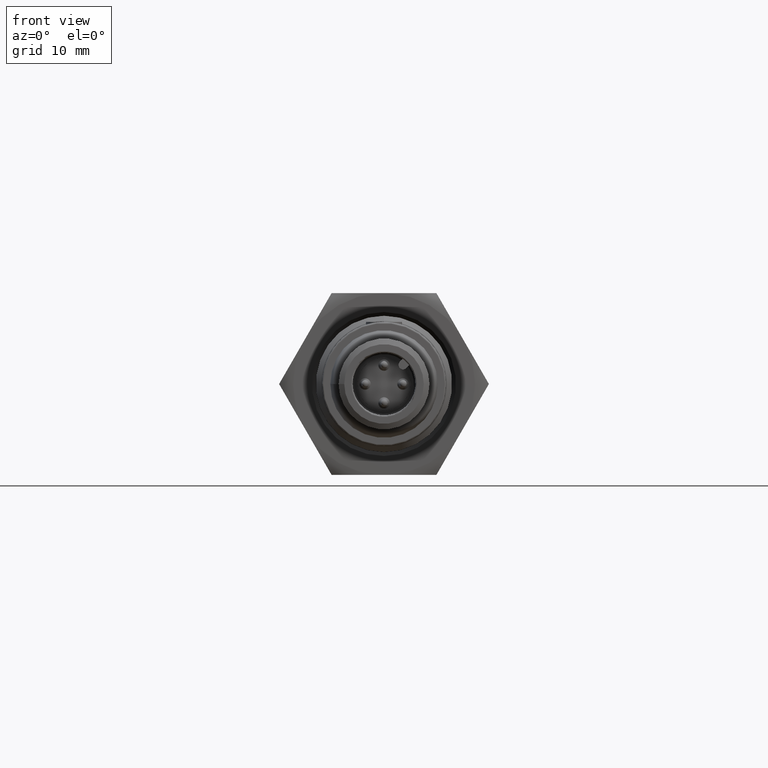
[diagram: clean part render]
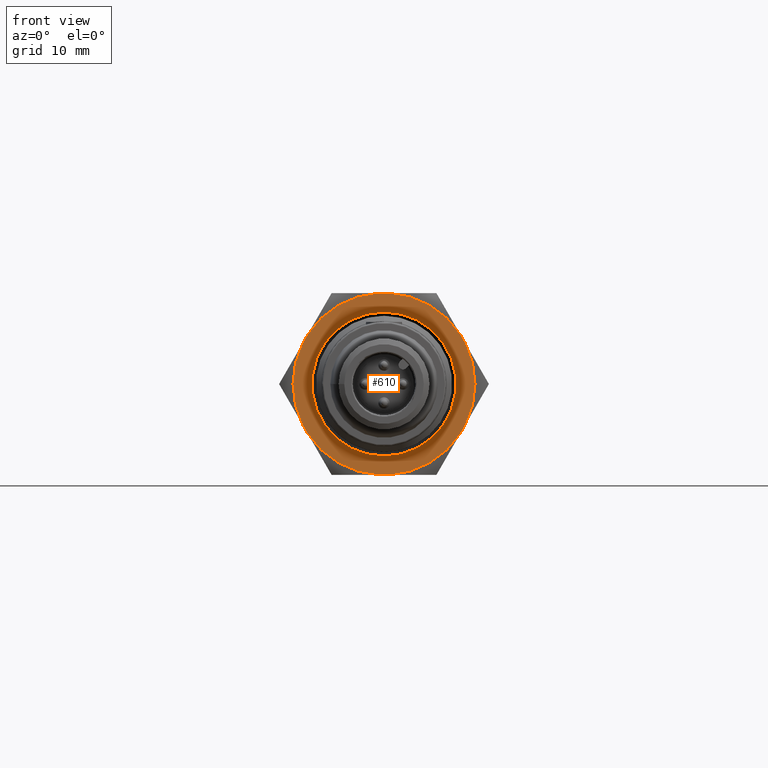
[diagram: same view with one face highlighted and labeled with its STEP entity id]
A machine part, front view. The second image highlights one B-rep face of the part: STEP entity #610.
In plain terms, the highlighted planar face has unit normal (-0, 1, 0).
Its self-contained STEP definition (entity closure, byte-faithful):
#25 = AXIS2_PLACEMENT_3D ( 'NONE', #3378, #5379, #1660 ) ;
#53 = PLANE ( 'NONE',  #2915 ) ;
#59 = ORIENTED_EDGE ( 'NONE', *, *, #1995, .F. ) ;
#154 = EDGE_CURVE ( 'NONE', #4142, #575, #4144, .T. ) ;
#176 = CARTESIAN_POINT ( 'NONE',  ( 0.2727639067037618270, 0.2006698835372759671, 0.4724409448818898127 ) ) ;
#215 = ORIENTED_EDGE ( 'NONE', *, *, #1578, .F. ) ;
#375 = DIRECTION ( 'NONE',  ( 0.000000000000000000, 0.000000000000000000, 1.000000000000000000 ) ) ;
#476 = CIRCLE ( 'NONE', #1098, 0.4731383344701551308 ) ;
#492 = EDGE_LOOP ( 'NONE', ( #544 ) ) ;
#493 = CARTESIAN_POINT ( 'NONE',  ( 0.2727639067037614384, 0.2006698835372759671, -0.4724409448818898127 ) ) ;
#524 = DIRECTION ( 'NONE',  ( 0.000000000000000000, 1.000000000000000000, 0.000000000000000000 ) ) ;
#529 = VERTEX_POINT ( 'NONE', #956 ) ;
#544 = ORIENTED_EDGE ( 'NONE', *, *, #843, .T. ) ;
#575 = VERTEX_POINT ( 'NONE', #3034 ) ;
#577 = EDGE_CURVE ( 'NONE', #2705, #529, #877, .T. ) ;
#580 = DIRECTION ( 'NONE',  ( 0.000000000000000000, 0.000000000000000000, 1.000000000000000000 ) ) ;
#610 = ADVANCED_FACE ( 'NONE', ( #3849, #1780 ), #53, .F. ) ;
#617 = DIRECTION ( 'NONE',  ( 0.4999999999999998335, 0.000000000000000000, -0.8660254037844385966 ) ) ;
#656 = VERTEX_POINT ( 'NONE', #4323 ) ;
#757 = CARTESIAN_POINT ( 'NONE',  ( -0.3963061059273519926, 0.2006698835372759671, 0.2584595789478295602 ) ) ;
#824 = DIRECTION ( 'NONE',  ( 0.000000000000000000, 1.000000000000000000, 0.000000000000000000 ) ) ;
#843 = EDGE_CURVE ( 'NONE', #3901, #3901, #4324, .T. ) ;
#877 = LINE ( 'NONE', #493, #3529 ) ;
#900 = CIRCLE ( 'NONE', #3887, 0.4731383344701551308 ) ;
#956 = CARTESIAN_POINT ( 'NONE',  ( -0.02567950825657311018, 0.2006698835372759671, -0.4724409448818898127 ) ) ;
#989 = AXIS2_PLACEMENT_3D ( 'NONE', #3497, #524, #4952 ) ;
#999 = VECTOR ( 'NONE', #3983, 39.37007874015748854 ) ;
#1013 = CARTESIAN_POINT ( 'NONE',  ( 0.3963061059279684994, 0.2006698835372759671, 0.2584595789467654114 ) ) ;
#1014 = LINE ( 'NONE', #3167, #1575 ) ;
#1098 = AXIS2_PLACEMENT_3D ( 'NONE', #1350, #3062, #580 ) ;
#1104 = VERTEX_POINT ( 'NONE', #757 ) ;
#1187 = DIRECTION ( 'NONE',  ( 0.4999999999999998335, 0.000000000000000000, 0.8660254037844385966 ) ) ;
#1199 = ORIENTED_EDGE ( 'NONE', *, *, #154, .F. ) ;
#1350 = CARTESIAN_POINT ( 'NONE',  ( 1.135241778920515794E-15, 0.2006698835372759671, -8.934202522968897980E-16 ) ) ;
#1400 = CARTESIAN_POINT ( 'NONE',  ( 0.4219856141839275487, 0.2006698835372759671, 0.2139813659340606411 ) ) ;
#1454 = VERTEX_POINT ( 'NONE', #1465 ) ;
#1465 = CARTESIAN_POINT ( 'NONE',  ( -0.3963061059279677778, 0.2006698835372759671, -0.2584595789467649674 ) ) ;
#1552 = VERTEX_POINT ( 'NONE', #2621 ) ;
#1575 = VECTOR ( 'NONE', #4462, 39.37007874015748854 ) ;
#1578 = EDGE_CURVE ( 'NONE', #1104, #1552, #5044, .T. ) ;
#1660 = DIRECTION ( 'NONE',  ( 0.000000000000000000, 0.000000000000000000, 1.000000000000000000 ) ) ;
#1668 = AXIS2_PLACEMENT_3D ( 'NONE', #2066, #824, #2507 ) ;
#1711 = DIRECTION ( 'NONE',  ( 0.000000000000000000, 0.000000000000000000, 1.000000000000000000 ) ) ;
#1725 = CARTESIAN_POINT ( 'NONE',  ( 1.135241778920515794E-15, 0.2006698835372759671, -8.934202522968897980E-16 ) ) ;
#1751 = DIRECTION ( 'NONE',  ( -1.000000000000000000, 0.000000000000000000, 0.000000000000000000 ) ) ;
#1780 = FACE_OUTER_BOUND ( 'NONE', #2417, .T. ) ;
#1856 = LINE ( 'NONE', #5211, #999 ) ;
#1931 = CARTESIAN_POINT ( 'NONE',  ( -0.2727639067037594400, 0.2006698835372759671, 0.4724409448818898127 ) ) ;
#1995 = EDGE_CURVE ( 'NONE', #529, #1454, #4879, .T. ) ;
#2063 = CARTESIAN_POINT ( 'NONE',  ( 0.4219856141843669195, 0.2006698835372759671, -0.2139813659333015816 ) ) ;
#2066 = CARTESIAN_POINT ( 'NONE',  ( 1.135241778920515794E-15, 0.2006698835372759671, -8.934202522968897980E-16 ) ) ;
#2078 = EDGE_CURVE ( 'NONE', #656, #2705, #900, .T. ) ;
#2158 = DIRECTION ( 'NONE',  ( 0.000000000000000000, 1.000000000000000000, 0.000000000000000000 ) ) ;
#2174 = CARTESIAN_POINT ( 'NONE',  ( 1.135241778920515794E-15, 0.2006698835372759671, -8.934202522968897980E-16 ) ) ;
#2417 = EDGE_LOOP ( 'NONE', ( #4908, #4322, #215, #4469, #1199, #3138, #59, #4044, #5268, #3203, #4586, #3606 ) ) ;
#2430 = CARTESIAN_POINT ( 'NONE',  ( -0.4219856141839275487, 0.2006698835372759671, -0.2139813659340574770 ) ) ;
#2507 = DIRECTION ( 'NONE',  ( 0.000000000000000000, 0.000000000000000000, 1.000000000000000000 ) ) ;
#2621 = CARTESIAN_POINT ( 'NONE',  ( -0.02567950825656397512, 0.2006698835372759671, 0.4724409448818898127 ) ) ;
#2679 = VECTOR ( 'NONE', #1187, 39.37007874015748854 ) ;
#2698 = DIRECTION ( 'NONE',  ( 0.000000000000000000, 1.000000000000000000, 0.000000000000000000 ) ) ;
#2705 = VERTEX_POINT ( 'NONE', #4476 ) ;
#2915 = AXIS2_PLACEMENT_3D ( 'NONE', #1725, #3795, #3410 ) ;
#2937 = EDGE_CURVE ( 'NONE', #3848, #4159, #3457, .T. ) ;
#3034 = CARTESIAN_POINT ( 'NONE',  ( -0.4219856141839259944, 0.2006698835372759671, 0.2139813659340582541 ) ) ;
#3062 = DIRECTION ( 'NONE',  ( 0.000000000000000000, 1.000000000000000000, 0.000000000000000000 ) ) ;
#3138 = ORIENTED_EDGE ( 'NONE', *, *, #4777, .F. ) ;
#3148 = EDGE_CURVE ( 'NONE', #4159, #656, #1856, .T. ) ;
#3164 = VERTEX_POINT ( 'NONE', #1013 ) ;
#3167 = CARTESIAN_POINT ( 'NONE',  ( -0.2727639067037590515, 0.2006698835372759671, -0.4724409448818898127 ) ) ;
#3203 = ORIENTED_EDGE ( 'NONE', *, *, #3148, .F. ) ;
#3378 = CARTESIAN_POINT ( 'NONE',  ( 1.135241778920515794E-15, 0.2006698835372759671, -8.934202522968897980E-16 ) ) ;
#3410 = DIRECTION ( 'NONE',  ( 1.000000000000000000, 0.000000000000000000, 0.000000000000000000 ) ) ;
#3438 = AXIS2_PLACEMENT_3D ( 'NONE', #4668, #2158, #1711 ) ;
#3457 = CIRCLE ( 'NONE', #25, 0.4731383344701551308 ) ;
#3481 = EDGE_CURVE ( 'NONE', #1552, #4191, #3615, .T. ) ;
#3489 = CARTESIAN_POINT ( 'NONE',  ( 1.135241778920515794E-15, 0.2006698835372759671, 0.3743307086614164891 ) ) ;
#3497 = CARTESIAN_POINT ( 'NONE',  ( 1.135241778920515794E-15, 0.2006698835372759671, -8.934202522968897980E-16 ) ) ;
#3503 = DIRECTION ( 'NONE',  ( 1.000000000000000000, 0.000000000000000000, 0.000000000000000000 ) ) ;
#3529 = VECTOR ( 'NONE', #1751, 39.37007874015748143 ) ;
#3606 = ORIENTED_EDGE ( 'NONE', *, *, #5272, .F. ) ;
#3615 = LINE ( 'NONE', #1931, #3722 ) ;
#3682 = CARTESIAN_POINT ( 'NONE',  ( 0.02567950825658196767, 0.2006698835372759671, 0.4724409448818898127 ) ) ;
#3722 = VECTOR ( 'NONE', #3503, 39.37007874015748143 ) ;
#3795 = DIRECTION ( 'NONE',  ( -0.000000000000000000, 1.000000000000000000, 0.000000000000000000 ) ) ;
#3848 = VERTEX_POINT ( 'NONE', #1400 ) ;
#3849 = FACE_BOUND ( 'NONE', #492, .T. ) ;
#3887 = AXIS2_PLACEMENT_3D ( 'NONE', #2174, #2698, #3961 ) ;
#3901 = VERTEX_POINT ( 'NONE', #3489 ) ;
#3941 = EDGE_CURVE ( 'NONE', #4191, #3164, #476, .T. ) ;
#3961 = DIRECTION ( 'NONE',  ( 0.000000000000000000, 0.000000000000000000, 1.000000000000000000 ) ) ;
#3983 = DIRECTION ( 'NONE',  ( -0.4999999999999998335, 0.000000000000000000, -0.8660254037844385966 ) ) ;
#4044 = ORIENTED_EDGE ( 'NONE', *, *, #577, .F. ) ;
#4126 = CARTESIAN_POINT ( 'NONE',  ( -0.5455278134075196572, 0.2006698835372759671, -8.934202522968897980E-16 ) ) ;
#4142 = VERTEX_POINT ( 'NONE', #2430 ) ;
#4144 = CIRCLE ( 'NONE', #1668, 0.4731383344701551308 ) ;
#4159 = VERTEX_POINT ( 'NONE', #2063 ) ;
#4191 = VERTEX_POINT ( 'NONE', #3682 ) ;
#4208 = EDGE_CURVE ( 'NONE', #575, #1104, #5436, .T. ) ;
#4322 = ORIENTED_EDGE ( 'NONE', *, *, #3481, .F. ) ;
#4323 = CARTESIAN_POINT ( 'NONE',  ( 0.3963061059273567110, 0.2006698835372759671, -0.2584595789478279504 ) ) ;
#4324 = CIRCLE ( 'NONE', #3438, 0.3743307086614173773 ) ;
#4462 = DIRECTION ( 'NONE',  ( -0.4999999999999998335, 0.000000000000000000, 0.8660254037844385966 ) ) ;
#4469 = ORIENTED_EDGE ( 'NONE', *, *, #4208, .F. ) ;
#4476 = CARTESIAN_POINT ( 'NONE',  ( 0.02567950825656338532, 0.2006698835372759671, -0.4724409448818898127 ) ) ;
#4580 = VECTOR ( 'NONE', #617, 39.37007874015748854 ) ;
#4586 = ORIENTED_EDGE ( 'NONE', *, *, #2937, .F. ) ;
#4629 = CARTESIAN_POINT ( 'NONE',  ( 1.135241778920515794E-15, 0.2006698835372759671, -8.934202522968897980E-16 ) ) ;
#4668 = CARTESIAN_POINT ( 'NONE',  ( 1.135241778920515794E-15, 0.2006698835372759671, -8.934202522968897980E-16 ) ) ;
#4777 = EDGE_CURVE ( 'NONE', #1454, #4142, #1014, .T. ) ;
#4879 = CIRCLE ( 'NONE', #989, 0.4731383344701551308 ) ;
#4908 = ORIENTED_EDGE ( 'NONE', *, *, #3941, .F. ) ;
#4952 = DIRECTION ( 'NONE',  ( 0.000000000000000000, 0.000000000000000000, 1.000000000000000000 ) ) ;
#5044 = CIRCLE ( 'NONE', #5129, 0.4731383344701551308 ) ;
#5129 = AXIS2_PLACEMENT_3D ( 'NONE', #4629, #5279, #375 ) ;
#5211 = CARTESIAN_POINT ( 'NONE',  ( 0.5455278134075219887, 0.2006698835372759671, -1.030012651980104438E-15 ) ) ;
#5268 = ORIENTED_EDGE ( 'NONE', *, *, #2078, .F. ) ;
#5272 = EDGE_CURVE ( 'NONE', #3164, #3848, #5315, .T. ) ;
#5279 = DIRECTION ( 'NONE',  ( 0.000000000000000000, 1.000000000000000000, 0.000000000000000000 ) ) ;
#5315 = LINE ( 'NONE', #176, #4580 ) ;
#5379 = DIRECTION ( 'NONE',  ( 0.000000000000000000, 1.000000000000000000, 0.000000000000000000 ) ) ;
#5436 = LINE ( 'NONE', #4126, #2679 ) ;